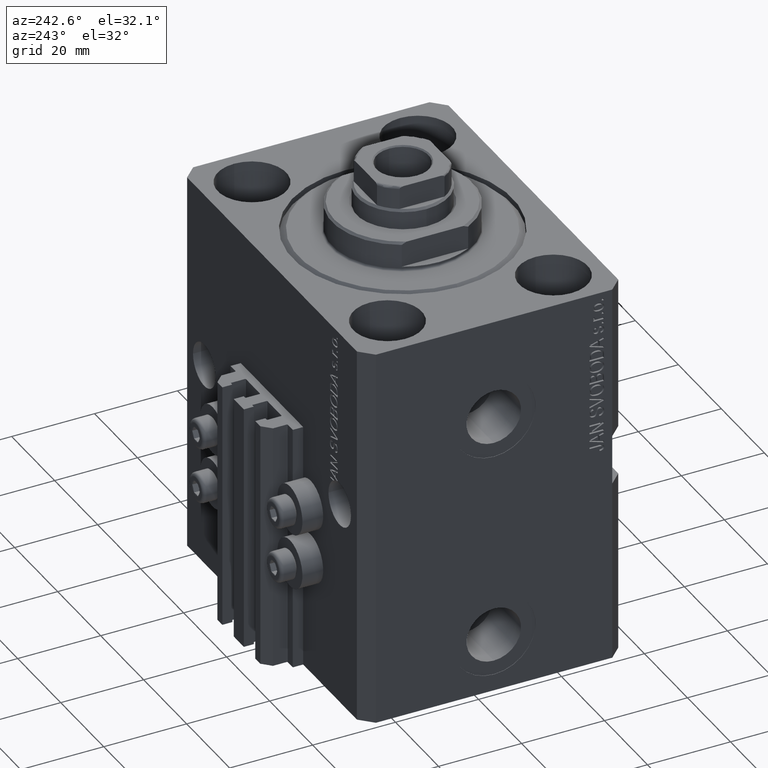
[diagram: clean part render]
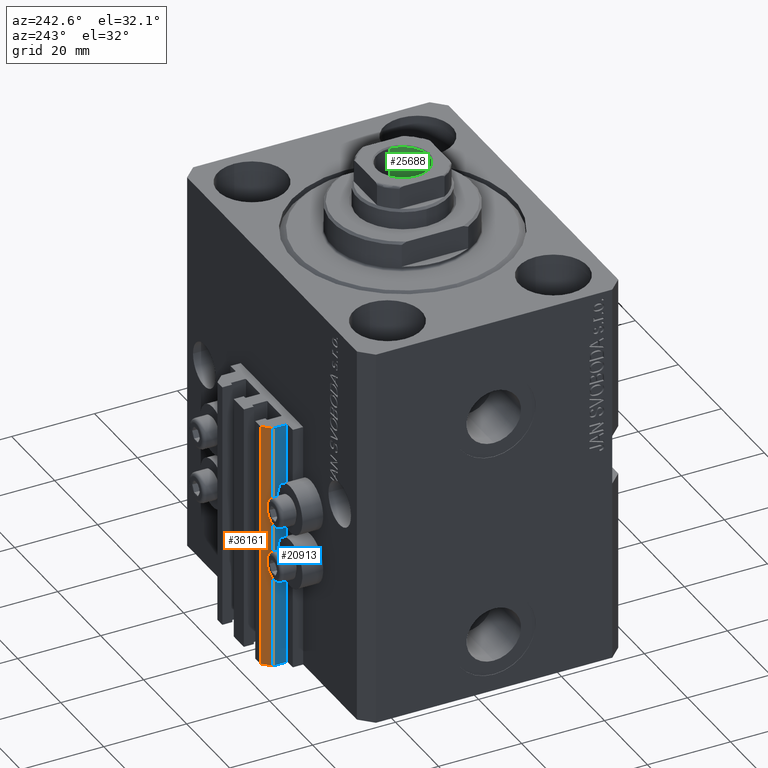
[diagram: same view with three faces highlighted in distinct colors, each labeled with its STEP entity id]
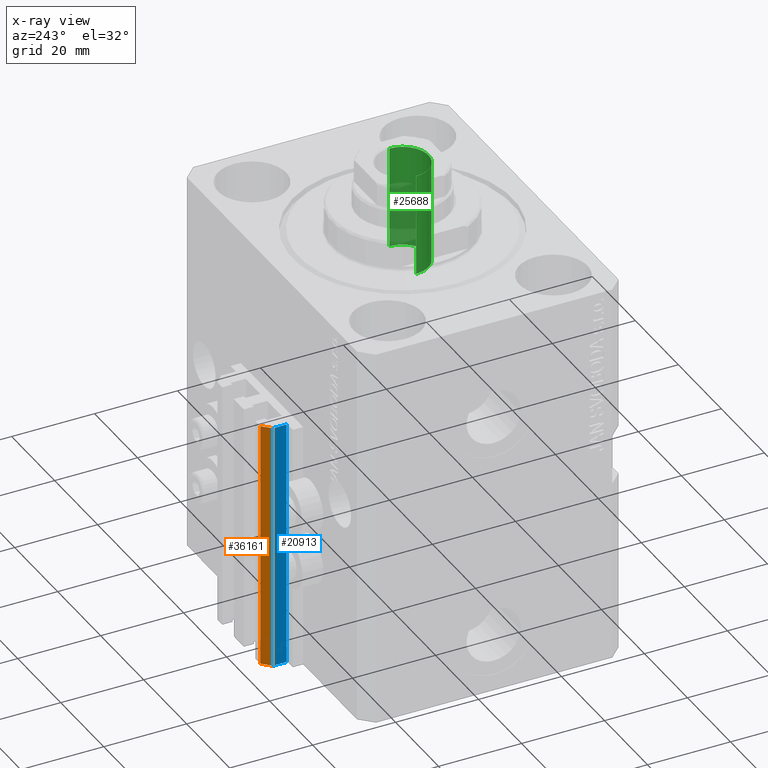
[diagram: x-ray of the same camera — body ghosted, the three highlighted faces saturated]
A machine part, auxiliary view with three faces highlighted in distinct colors.
The next image is the same camera in x-ray (body ghosted, the three faces saturated) — at least one of them is partly hidden behind the body in this view.
Their STEP definitions:

[orange] entity #36161 — the highlighted planar face has unit normal (-0.7071, 0.7071, 0).
#1742 = PLANE ( 'NONE',  #26930 ) ;
#3016 = ORIENTED_EDGE ( 'NONE', *, *, #35870, .T. ) ;
#3047 = DIRECTION ( 'NONE',  ( -0.7071067811865472397, -0.7071067811865479058, 0.000000000000000000 ) ) ;
#6025 = CARTESIAN_POINT ( 'NONE',  ( -10.00000000000000000, 39.49999999999999289, -33.00000000000000000 ) ) ;
#8237 = DIRECTION ( 'NONE',  ( -0.7071067811865472397, -0.7071067811865479058, 0.000000000000000000 ) ) ;
#8476 = CARTESIAN_POINT ( 'NONE',  ( -10.00000000000000000, 39.49999999999999289, -93.00000000000000000 ) ) ;
#9871 = DIRECTION ( 'NONE',  ( -0.7071067811865472397, -0.7071067811865479058, 0.000000000000000000 ) ) ;
#10196 = VECTOR ( 'NONE', #11767, 1000.000000000000000 ) ;
#11767 = DIRECTION ( 'NONE',  ( 0.000000000000000000, 0.000000000000000000, 1.000000000000000000 ) ) ;
#12381 = CARTESIAN_POINT ( 'NONE',  ( -12.00000000000000000, 37.49999999999999289, -93.00000000000000000 ) ) ;
#12476 = CARTESIAN_POINT ( 'NONE',  ( -12.00000000000000000, 37.49999999999999289, -93.00000000000000000 ) ) ;
#13756 = VECTOR ( 'NONE', #9871, 999.9999999999998863 ) ;
#14460 = EDGE_CURVE ( 'NONE', #34754, #35400, #31973, .T. ) ;
#15960 = VERTEX_POINT ( 'NONE', #12476 ) ;
#17903 = CARTESIAN_POINT ( 'NONE',  ( -10.00000000000000000, 39.49999999999999289, -33.00000000000000000 ) ) ;
#18185 = CARTESIAN_POINT ( 'NONE',  ( -10.00000000000000000, 39.49999999999999289, -93.00000000000000000 ) ) ;
#23189 = DIRECTION ( 'NONE',  ( 0.000000000000000000, 0.000000000000000000, 1.000000000000000000 ) ) ;
#24223 = ORIENTED_EDGE ( 'NONE', *, *, #32146, .T. ) ;
#26930 = AXIS2_PLACEMENT_3D ( 'NONE', #8476, #38046, #8237 ) ;
#28480 = VECTOR ( 'NONE', #23189, 1000.000000000000000 ) ;
#29788 = VERTEX_POINT ( 'NONE', #44082 ) ;
#30582 = FACE_OUTER_BOUND ( 'NONE', #30757, .T. ) ;
#30757 = EDGE_LOOP ( 'NONE', ( #33507, #37657, #24223, #3016 ) ) ;
#31973 = LINE ( 'NONE', #6025, #13756 ) ;
#32146 = EDGE_CURVE ( 'NONE', #29788, #15960, #47298, .T. ) ;
#33507 = ORIENTED_EDGE ( 'NONE', *, *, #14460, .F. ) ;
#34754 = VERTEX_POINT ( 'NONE', #17903 ) ;
#35400 = VERTEX_POINT ( 'NONE', #41592 ) ;
#35870 = EDGE_CURVE ( 'NONE', #15960, #35400, #38342, .T. ) ;
#36161 = ADVANCED_FACE ( 'NONE', ( #30582 ), #1742, .T. ) ;
#37482 = CARTESIAN_POINT ( 'NONE',  ( -10.00000000000000000, 39.49999999999999289, -93.00000000000000000 ) ) ;
#37657 = ORIENTED_EDGE ( 'NONE', *, *, #43824, .F. ) ;
#38046 = DIRECTION ( 'NONE',  ( -0.7071067811865479058, 0.7071067811865472397, 0.000000000000000000 ) ) ;
#38342 = LINE ( 'NONE', #12381, #28480 ) ;
#40860 = LINE ( 'NONE', #37482, #10196 ) ;
#41592 = CARTESIAN_POINT ( 'NONE',  ( -12.00000000000000000, 37.49999999999999289, -33.00000000000000000 ) ) ;
#43824 = EDGE_CURVE ( 'NONE', #29788, #34754, #40860, .T. ) ;
#44082 = CARTESIAN_POINT ( 'NONE',  ( -10.00000000000000000, 39.49999999999999289, -93.00000000000000000 ) ) ;
#47298 = LINE ( 'NONE', #18185, #47556 ) ;
#47556 = VECTOR ( 'NONE', #3047, 999.9999999999998863 ) ;

[blue] entity #20913 — the highlighted planar face has unit normal (-1, 0, 0).
#1670 = FACE_OUTER_BOUND ( 'NONE', #25959, .T. ) ;
#1844 = LINE ( 'NONE', #37909, #7859 ) ;
#2098 = DIRECTION ( 'NONE',  ( 0.000000000000000000, 0.000000000000000000, 1.000000000000000000 ) ) ;
#4198 = CARTESIAN_POINT ( 'NONE',  ( -12.00000000000000000, 34.19999999999999574, -33.00000000000000000 ) ) ;
#6742 = VERTEX_POINT ( 'NONE', #4198 ) ;
#7859 = VECTOR ( 'NONE', #16507, 1000.000000000000000 ) ;
#8858 = ORIENTED_EDGE ( 'NONE', *, *, #39656, .T. ) ;
#10692 = VECTOR ( 'NONE', #2098, 1000.000000000000000 ) ;
#12381 = CARTESIAN_POINT ( 'NONE',  ( -12.00000000000000000, 37.49999999999999289, -93.00000000000000000 ) ) ;
#12476 = CARTESIAN_POINT ( 'NONE',  ( -12.00000000000000000, 37.49999999999999289, -93.00000000000000000 ) ) ;
#12558 = LINE ( 'NONE', #23126, #13811 ) ;
#13811 = VECTOR ( 'NONE', #34176, 1000.000000000000000 ) ;
#14606 = AXIS2_PLACEMENT_3D ( 'NONE', #37503, #30512, #34352 ) ;
#15960 = VERTEX_POINT ( 'NONE', #12476 ) ;
#16507 = DIRECTION ( 'NONE',  ( 0.000000000000000000, -1.000000000000000000, 0.000000000000000000 ) ) ;
#17000 = CARTESIAN_POINT ( 'NONE',  ( -12.00000000000000000, 34.19999999999999574, -93.00000000000000000 ) ) ;
#18994 = PLANE ( 'NONE',  #14606 ) ;
#20565 = EDGE_CURVE ( 'NONE', #35400, #6742, #12558, .T. ) ;
#20913 = ADVANCED_FACE ( 'NONE', ( #1670 ), #18994, .T. ) ;
#23126 = CARTESIAN_POINT ( 'NONE',  ( -12.00000000000000000, 37.49999999999999289, -33.00000000000000000 ) ) ;
#23189 = DIRECTION ( 'NONE',  ( 0.000000000000000000, 0.000000000000000000, 1.000000000000000000 ) ) ;
#24227 = ORIENTED_EDGE ( 'NONE', *, *, #32013, .T. ) ;
#24395 = ORIENTED_EDGE ( 'NONE', *, *, #35870, .F. ) ;
#25959 = EDGE_LOOP ( 'NONE', ( #35337, #24395, #8858, #24227 ) ) ;
#26346 = VERTEX_POINT ( 'NONE', #27570 ) ;
#27570 = CARTESIAN_POINT ( 'NONE',  ( -12.00000000000000000, 34.19999999999999574, -93.00000000000000000 ) ) ;
#28480 = VECTOR ( 'NONE', #23189, 1000.000000000000000 ) ;
#30512 = DIRECTION ( 'NONE',  ( -1.000000000000000000, 0.000000000000000000, 0.000000000000000000 ) ) ;
#32013 = EDGE_CURVE ( 'NONE', #26346, #6742, #45870, .T. ) ;
#34176 = DIRECTION ( 'NONE',  ( 0.000000000000000000, -1.000000000000000000, 0.000000000000000000 ) ) ;
#34352 = DIRECTION ( 'NONE',  ( 0.000000000000000000, 0.000000000000000000, 1.000000000000000000 ) ) ;
#35337 = ORIENTED_EDGE ( 'NONE', *, *, #20565, .F. ) ;
#35400 = VERTEX_POINT ( 'NONE', #41592 ) ;
#35870 = EDGE_CURVE ( 'NONE', #15960, #35400, #38342, .T. ) ;
#37503 = CARTESIAN_POINT ( 'NONE',  ( -12.00000000000000000, 37.49999999999999289, -93.00000000000000000 ) ) ;
#37909 = CARTESIAN_POINT ( 'NONE',  ( -12.00000000000000000, 37.49999999999999289, -93.00000000000000000 ) ) ;
#38342 = LINE ( 'NONE', #12381, #28480 ) ;
#39656 = EDGE_CURVE ( 'NONE', #15960, #26346, #1844, .T. ) ;
#41592 = CARTESIAN_POINT ( 'NONE',  ( -12.00000000000000000, 37.49999999999999289, -33.00000000000000000 ) ) ;
#45870 = LINE ( 'NONE', #17000, #10692 ) ;

[green] entity #25688 — the highlighted cylindrical surface (edge-blend (fillet) strip) has radius 6.25 mm, axis along (0, 0, 1).
#3990 = DIRECTION ( 'NONE',  ( 1.000000000000000000, 0.000000000000000000, 0.000000000000000000 ) ) ;
#7175 = DIRECTION ( 'NONE',  ( 1.000000000000000000, 0.000000000000000000, 0.000000000000000000 ) ) ;
#8248 = DIRECTION ( 'NONE',  ( -0.000000000000000000, -0.000000000000000000, 1.000000000000000000 ) ) ;
#9461 = CARTESIAN_POINT ( 'NONE',  ( -6.249999999999995559, 7.654042494670950704E-16, 98.60000000000000853 ) ) ;
#10965 = VECTOR ( 'NONE', #39426, 1000.000000000000000 ) ;
#11307 = EDGE_LOOP ( 'NONE', ( #35219, #18375, #42391, #36421 ) ) ;
#12332 = DIRECTION ( 'NONE',  ( 1.000000000000000000, 0.000000000000000000, 0.000000000000000000 ) ) ;
#12755 = VERTEX_POINT ( 'NONE', #41455 ) ;
#18375 = ORIENTED_EDGE ( 'NONE', *, *, #42889, .T. ) ;
#18501 = CARTESIAN_POINT ( 'NONE',  ( 6.249999999999995559, 0.000000000000000000, 98.60000000000000853 ) ) ;
#19238 = AXIS2_PLACEMENT_3D ( 'NONE', #36732, #25443, #7175 ) ;
#20652 = AXIS2_PLACEMENT_3D ( 'NONE', #41199, #8248, #12332 ) ;
#21140 = EDGE_CURVE ( 'NONE', #34539, #12755, #33801, .T. ) ;
#21383 = LINE ( 'NONE', #18501, #10965 ) ;
#21739 = CARTESIAN_POINT ( 'NONE',  ( 6.249999999999993783, 0.000000000000000000, 73.59999999999999432 ) ) ;
#21915 = CARTESIAN_POINT ( 'NONE',  ( -6.249999999999993783, 7.654042494670949718E-16, 73.59999999999999432 ) ) ;
#23267 = CARTESIAN_POINT ( 'NONE',  ( -6.249999999999995559, 7.654042494670950704E-16, 98.29999999999999716 ) ) ;
#25443 = DIRECTION ( 'NONE',  ( 0.000000000000000000, 0.000000000000000000, 1.000000000000000000 ) ) ;
#25688 = ADVANCED_FACE ( 'NONE', ( #44158 ), #25863, .F. ) ;
#25863 = CYLINDRICAL_SURFACE ( 'NONE', #41662, 6.249999999999995559 ) ;
#28058 = EDGE_CURVE ( 'NONE', #37137, #41543, #29797, .T. ) ;
#29797 = CIRCLE ( 'NONE', #20652, 6.249999999999993783 ) ;
#31557 = DIRECTION ( 'NONE',  ( -0.000000000000000000, -0.000000000000000000, 1.000000000000000000 ) ) ;
#32456 = VECTOR ( 'NONE', #31557, 1000.000000000000000 ) ;
#33801 = CIRCLE ( 'NONE', #19238, 6.249999999999995559 ) ;
#34539 = VERTEX_POINT ( 'NONE', #23267 ) ;
#35219 = ORIENTED_EDGE ( 'NONE', *, *, #28058, .F. ) ;
#36421 = ORIENTED_EDGE ( 'NONE', *, *, #43226, .F. ) ;
#36732 = CARTESIAN_POINT ( 'NONE',  ( 0.000000000000000000, 0.000000000000000000, 98.29999999999999716 ) ) ;
#36920 = DIRECTION ( 'NONE',  ( -0.000000000000000000, -0.000000000000000000, 1.000000000000000000 ) ) ;
#37137 = VERTEX_POINT ( 'NONE', #21915 ) ;
#39426 = DIRECTION ( 'NONE',  ( -0.000000000000000000, -0.000000000000000000, 1.000000000000000000 ) ) ;
#41005 = CARTESIAN_POINT ( 'NONE',  ( 0.000000000000000000, 0.000000000000000000, 98.60000000000000853 ) ) ;
#41199 = CARTESIAN_POINT ( 'NONE',  ( 0.000000000000000000, 0.000000000000000000, 73.59999999999999432 ) ) ;
#41455 = CARTESIAN_POINT ( 'NONE',  ( 6.249999999999995559, 0.000000000000000000, 98.29999999999999716 ) ) ;
#41543 = VERTEX_POINT ( 'NONE', #21739 ) ;
#41662 = AXIS2_PLACEMENT_3D ( 'NONE', #41005, #36920, #3990 ) ;
#42391 = ORIENTED_EDGE ( 'NONE', *, *, #21140, .T. ) ;
#42405 = LINE ( 'NONE', #9461, #32456 ) ;
#42889 = EDGE_CURVE ( 'NONE', #37137, #34539, #42405, .T. ) ;
#43226 = EDGE_CURVE ( 'NONE', #41543, #12755, #21383, .T. ) ;
#44158 = FACE_OUTER_BOUND ( 'NONE', #11307, .T. ) ;